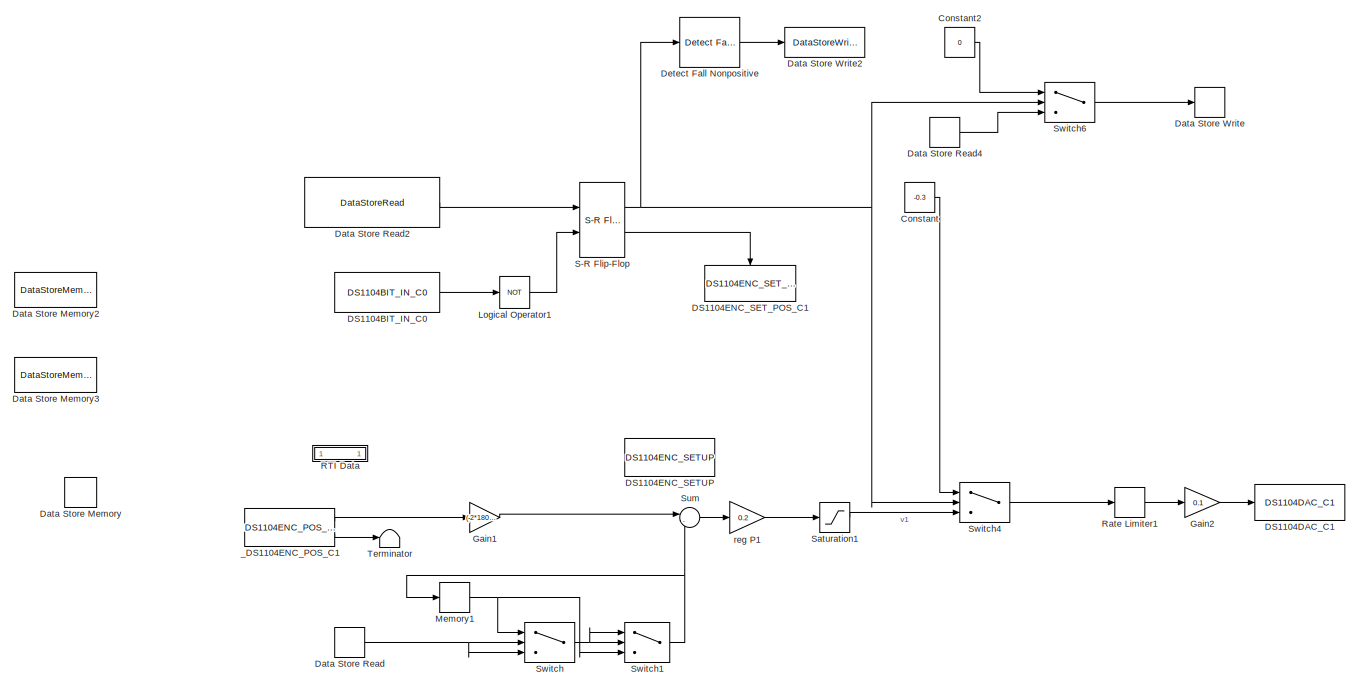
[diagram: root canvas - part 1/2, full width, top band]
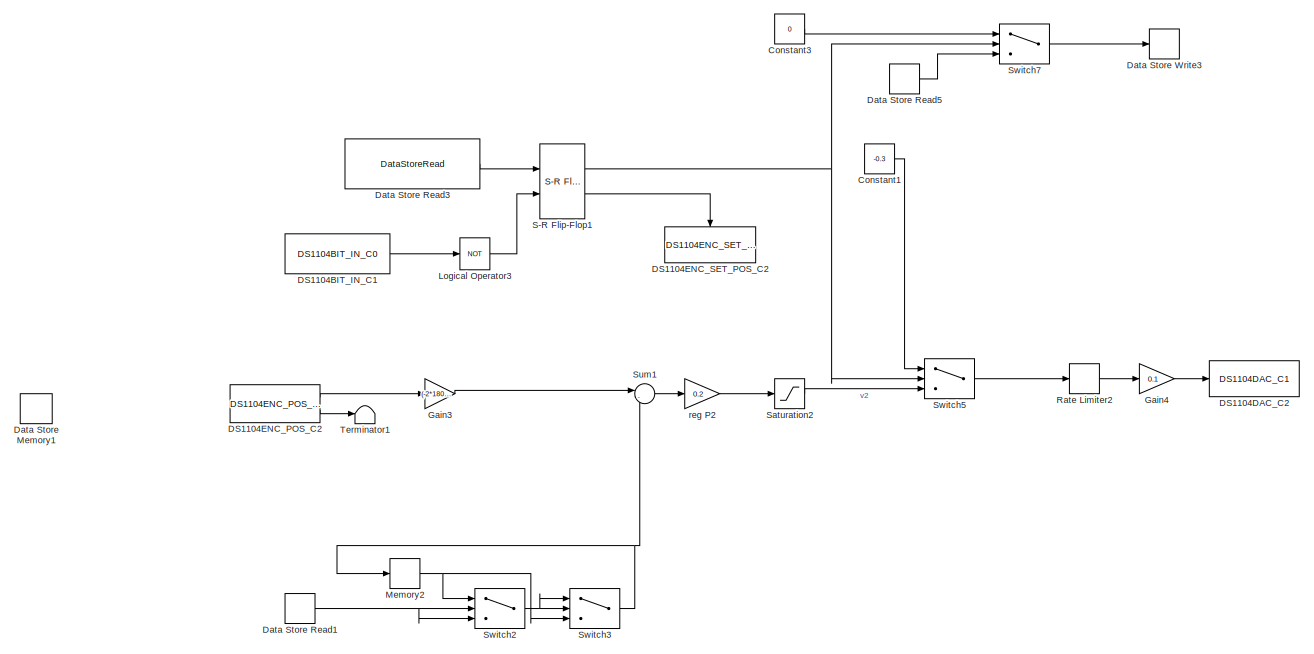
[diagram: root canvas - part 2/2, full width, bottom band]
MODEL slx_626cdde217bb
KIND model
CONFIG AbsTol = auto
CONFIG FixedStep = 0.001
CONFIG MaxStep = auto
CONFIG MinStep = auto
CONFIG PostLoadFcn = , if any(exist('dsrtsu_mdlpostloadfcn', 'file') == [2, 3, 6]), try dsrtsu_mdlpostloadfcn('Execute', bdroot); catch fprintf('Error in PostLoadFcn (dsrtsu_mdlpostloadfcn) for model "%s":\n %s\n', bdroot, lasterr); end, end, \n
CONFIG RelTol = 1e-3
CONFIG SampleTimeConstraint = Unconstrained
CONFIG Solver = ode1
CONFIG SolverMode = Auto
CONFIG SolverName = ode1
CONFIG StartTime = 0.0
CONFIG StopTime = Inf
BLOCK [Constant] Constant
  Value = -0.3
BLOCK [Constant] Constant1
  Value = -0.3
BLOCK [Constant] Constant2
  Value = 0
BLOCK [Constant] Constant3
  Value = 0
BLOCK [Reference] DS1104BIT_IN_C0  REF=rtilib1104/DS1104 MASTER PPC/DS1104BIT_IN_C0
  ChannelNo = 0
  DSProperties = struct('RTI',struct('Version',uint32(1),'BlockType',struct('isSLSource',uint8(1),'isSLSink',uint8(0),'isHWSource',uint8(1),'isHWSink',uint8(0),'isSetup',uint8(0),'isInline',uint8(1),'isNonInline',uint8(0),'isInterrupt',uint8(0),'isChannelwise',uint8(1)),'IOBoardType','DS1104MASTER','UnitType','BIT','Identifier','BITINCH','DialogType','ML','BlockSet','NONE','SlaveProcessor','NONE'))
  DialogFcn = gui1104bit_in
  Ports = [0, 1]
  Reserved1 = []
  Reserved2 = []
  Reserved3 = []
  Reserved4 = []
  SourceBlock = rtilib1104/DS1104 MASTER PPC/DS1104BIT_IN_C0
  SourceType = RTI
  UnitName = {'DS1104BIT_IN_C'}
  UnitValues = { 0 }
BLOCK [Reference] DS1104BIT_IN_C1  REF=rtilib1104/DS1104 MASTER PPC/DS1104BIT_IN_C0
  ChannelNo = 1
  DSProperties = struct('RTI',struct('Version',uint32(1),'BlockType',struct('isSLSource',uint8(1),'isSLSink',uint8(0),'isHWSource',uint8(1),'isHWSink',uint8(0),'isSetup',uint8(0),'isInline',uint8(1),'isNonInline',uint8(0),'isInterrupt',uint8(0),'isChannelwise',uint8(1)),'IOBoardType','DS1104MASTER','UnitType','BIT','Identifier','BITINCH','DialogType','ML','BlockSet','NONE','SlaveProcessor','NONE'))
  DialogFcn = gui1104bit_in
  Ports = [0, 1]
  Reserved1 = []
  Reserved2 = []
  Reserved3 = []
  Reserved4 = []
  SourceBlock = rtilib1104/DS1104 MASTER PPC/DS1104BIT_IN_C0
  SourceType = RTI
  UnitName = {'DS1104BIT_IN_C'}
  UnitValues = { 1 }
BLOCK [Reference] DS1104DAC_C1  REF=rtilib1104/DS1104 MASTER PPC/DS1104DAC_C1
  ChannelNo = 1
  DSProperties = struct('RTI',struct('Version',uint32(1),'BlockType',struct('isSLSource',uint8(0),'isSLSink',uint8(1),'isHWSource',uint8(0),'isHWSink',uint8(1),'isSetup',uint8(0),'isInline',uint8(1),'isNonInline',uint8(0),'isInterrupt',uint8(0),'isChannelwise',uint8(1)),'IOBoardType','DS1104MASTER','UnitType','DAC','Identifier','DAC','DialogType','ML','BlockSet','NONE','SlaveProcessor','NONE'))
  DialogFcn = gui1104dac
  InitValue = 0
  Ports = [1]
  Reserved1 = []
  Reserved2 = []
  Reserved3 = []
  Reserved4 = []
  SourceBlock = rtilib1104/DS1104 MASTER PPC/DS1104DAC_C1
  SourceType = RTI
  TermMode = 0
  TermValue = 0
  UnitName = { 'DS1104DAC_C'}
  UnitValues = { 1 }
BLOCK [Reference] DS1104DAC_C2  REF=rtilib1104/DS1104 MASTER PPC/DS1104DAC_C1
  ChannelNo = 2
  DSProperties = struct('RTI',struct('Version',uint32(1),'BlockType',struct('isSLSource',uint8(0),'isSLSink',uint8(1),'isHWSource',uint8(0),'isHWSink',uint8(1),'isSetup',uint8(0),'isInline',uint8(1),'isNonInline',uint8(0),'isInterrupt',uint8(0),'isChannelwise',uint8(1)),'IOBoardType','DS1104MASTER','UnitType','DAC','Identifier','DAC','DialogType','ML','BlockSet','NONE','SlaveProcessor','NONE'))
  DialogFcn = gui1104dac
  InitValue = 0
  Ports = [1]
  Reserved1 = []
  Reserved2 = []
  Reserved3 = []
  Reserved4 = []
  SourceBlock = rtilib1104/DS1104 MASTER PPC/DS1104DAC_C1
  SourceType = RTI
  TermMode = 0
  TermValue = 0
  UnitName = { 'DS1104DAC_C'}
  UnitValues = {2}
BLOCK [Reference] DS1104ENC_POS_C2  REF=rtilib1104/DS1104 MASTER PPC/DS1104ENC_POS_C1
  ChannelNo = 2
  DSProperties = struct('RTI',struct('Version',uint32(1),'BlockType',struct('isSLSource',uint8(1),'isSLSink',uint8(0),'isHWSource',uint8(1),'isHWSink',uint8(0),'isSetup',uint8(0),'isInline',uint8(1),'isNonInline',uint8(0),'isInterrupt',uint8(0),'isChannelwise',uint8(1)),'IOBoardType','DS1104MASTER','UnitType','ENC','Identifier','ENCPOSCH','DialogType','ML','BlockSet','NONE','SlaveProcessor','NONE'))
  DialogFcn = gui1104enc_pos
  Ports = [0, 2]
  PosValue = 0
  Reserved1 = []
  Reserved2 = []
  Reserved3 = []
  Reserved4 = []
  SourceBlock = rtilib1104/DS1104 MASTER PPC/DS1104ENC_POS_C1
  SourceType = RTI
  UnitName = {'DS1104ENC_POS_C'}
  UnitValues = { 2 }
BLOCK [Reference] DS1104ENC_SETUP  REF=rtilib1104/DS1104 MASTER PPC/DS1104ENC_SETUP
  DSProperties = struct('RTI',struct('Version',uint32(1),'BlockType',struct('isSLSource',uint8(0),'isSLSink',uint8(0),'isHWSource',uint8(0),'isHWSink',uint8(0),'isSetup',uint8(0),'isInline',uint8(1),'isNonInline',uint8(0),'isInterrupt',uint8(0),'isChannelwise',uint8(0)),'IOBoardType','DS1104MASTER','UnitType','ENC','Identifier','ENCSETUP','DialogType','ML','BlockSet','NONE','SlaveProcessor','NONE'))
  DialogFcn = gui1104enc_setup
  Ports = []
  Reserved1 = []
  Reserved2 = []
  Reserved3 = []
  Reserved4 = []
  SignalType = [0 0]
  SourceBlock = rtilib1104/DS1104 MASTER PPC/DS1104ENC_SETUP
  SourceType = RTI
  UnitName = {'DS1104ENC_SETUP'}
  UnitValues = { [] }
BLOCK [Reference] DS1104ENC_SET_POS_C1  REF=rtilib1104/DS1104 MASTER PPC/DS1104ENC_SET_POS_C1
  ChannelNo = 1
  DSProperties = struct('RTI',struct('Version',uint32(1),'BlockType',struct('isSLSource',uint8(0),'isSLSink',uint8(1),'isHWSource',uint8(0),'isHWSink',uint8(1),'isSetup',uint8(0),'isInline',uint8(1),'isNonInline',uint8(0),'isInterrupt',uint8(0),'isChannelwise',uint8(1)),'IOBoardType','DS1104MASTER','UnitType','ENC','Identifier','ENCRESET','DialogType','ML','BlockSet','NONE','SlaveProcessor','NONE'))
  DialogFcn = gui1104enc_set_pos
  Ports = [0, 0, 0, 1]
  PosValue = 0
  Reserved1 = []
  Reserved2 = []
  Reserved3 = []
  Reserved4 = []
  SourceBlock = rtilib1104/DS1104 MASTER PPC/DS1104ENC_SET_POS_C1
  SourceType = RTI
  UnitName = {'DS1104ENC_SET_POS_C'}
  UnitValues = { 1 }
BLOCK [Reference] DS1104ENC_SET_POS_C2  REF=rtilib1104/DS1104 MASTER PPC/DS1104ENC_SET_POS_C1
  ChannelNo = 2
  DSProperties = struct('RTI',struct('Version',uint32(1),'BlockType',struct('isSLSource',uint8(0),'isSLSink',uint8(1),'isHWSource',uint8(0),'isHWSink',uint8(1),'isSetup',uint8(0),'isInline',uint8(1),'isNonInline',uint8(0),'isInterrupt',uint8(0),'isChannelwise',uint8(1)),'IOBoardType','DS1104MASTER','UnitType','ENC','Identifier','ENCRESET','DialogType','ML','BlockSet','NONE','SlaveProcessor','NONE'))
  DialogFcn = gui1104enc_set_pos
  Ports = [0, 0, 0, 1]
  PosValue = 0
  Reserved1 = []
  Reserved2 = []
  Reserved3 = []
  Reserved4 = []
  SourceBlock = rtilib1104/DS1104 MASTER PPC/DS1104ENC_SET_POS_C1
  SourceType = RTI
  UnitName = {'DS1104ENC_SET_POS_C'}
  UnitValues = {2}
BLOCK [DataStoreMemory] Data Store Memory
  DataStoreName = WZ1
  ReadBeforeWriteMsg = warning
  WriteAfterReadMsg = warning
  WriteAfterWriteMsg = warning
BLOCK [DataStoreMemory] Data Store Memory1
  DataStoreName = WZ2
  ReadBeforeWriteMsg = warning
  WriteAfterReadMsg = warning
  WriteAfterWriteMsg = warning
BLOCK [DataStoreMemory] Data Store Memory2
  DataStoreName = bazowanie1
  InitialValue = false
  OutDataTypeStr = boolean
  ReadBeforeWriteMsg = warning
  WriteAfterReadMsg = warning
  WriteAfterWriteMsg = warning
BLOCK [DataStoreMemory] Data Store Memory3
  DataStoreName = bazowanie2
  InitialValue = false
  OutDataTypeStr = boolean
  ReadBeforeWriteMsg = warning
  WriteAfterReadMsg = warning
  WriteAfterWriteMsg = warning
BLOCK [DataStoreRead] Data Store Read
  DataStoreName = WZ1
  DialogController = Simulink.DDGSource
  Ports = [0, 1]
BLOCK [DataStoreRead] Data Store Read1
  DataStoreName = WZ2
  Ports = [0, 1]
BLOCK [DataStoreRead] Data Store Read2
  DataStoreName = bazowanie1
  Ports = [0, 1]
BLOCK [DataStoreRead] Data Store Read3
  DataStoreName = bazowanie2
  Ports = [0, 1]
BLOCK [DataStoreRead] Data Store Read4
  DataStoreName = WZ1
  DialogController = Simulink.DDGSource
  Ports = [0, 1]
BLOCK [DataStoreRead] Data Store Read5
  DataStoreName = WZ2
  DialogController = Simulink.DDGSource
  Ports = [0, 1]
BLOCK [DataStoreWrite] Data Store Write
  DataStoreName = WZ1
  Ports = [1]
BLOCK [DataStoreWrite] Data Store Write2
  DataStoreName = bazowanie2
  Ports = [1]
BLOCK [DataStoreWrite] Data Store Write3
  DataStoreName = WZ2
  Ports = [1]
BLOCK [Reference] Detect Fall Nonpositive  REF=simulink/Logic and Bit
Operations/Detect Fall
Nonpositive
  InputProcessing = Inherited
  OutDataTypeStr = boolean
  Ports = [1, 1]
  SourceBlock = simulink/Logic and Bit\nOperations/Detect Fall\nNonpositive
  SourceType = Detect Fall Nonpositive
  vinit = 0
BLOCK [Gain] Gain1
  Gain = (-2*180)/(500*128)
  OutDataTypeStr = Inherit: Inherit via internal rule
  ParamDataTypeStr = Inherit: Inherit via internal rule
  SaturateOnIntegerOverflow = off
BLOCK [Gain] Gain2
  Gain = 0.1
  OutDataTypeStr = Inherit: Inherit via internal rule
  ParamDataTypeStr = Inherit: Inherit via internal rule
  SaturateOnIntegerOverflow = off
BLOCK [Gain] Gain3
  Gain = (-2*180)/(500*128)
  OutDataTypeStr = Inherit: Inherit via internal rule
  ParamDataTypeStr = Inherit: Inherit via internal rule
  SaturateOnIntegerOverflow = off
BLOCK [Gain] Gain4
  Gain = 0.1
  OutDataTypeStr = Inherit: Inherit via internal rule
  ParamDataTypeStr = Inherit: Inherit via internal rule
  SaturateOnIntegerOverflow = off
BLOCK [Logic] Logical Operator1
  AllPortsSameDT = off
  Operator = NOT
  OutDataTypeStr = boolean
  Ports = [1, 1]
BLOCK [Logic] Logical Operator3
  AllPortsSameDT = off
  Operator = NOT
  OutDataTypeStr = boolean
  Ports = [1, 1]
BLOCK [Memory] Memory1
BLOCK [Memory] Memory2
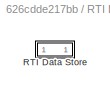
BLOCK [SubSystem] RTI Data
  CopyFcn = if exist('rtidc'), try,  rtidc('DataHostBlockClbCopy', gcbh); catch, disp(['Warning: ''CopyFcn'' for RTI Data block failed: ' lasterr]); end, end,
  DeleteFcn = if exist('rtidc'), try,  rtidc('DataHostBlockClbDelete', gcbh); catch, disp(['Warning: ''DeleteFcn'' for RTI Data block failed: ' lasterr]); end, end,
  LoadFcn = if exist('rtidc'), try,  rtidc('DataHostBlockClbLoad', gcbh); catch, disp(['Warning: ''LoadFcn'' for RTI Data block failed: ' lasterr]); end, end,
  ModelCloseFcn = if exist('rtidc'), try,  rtidc('DataHostBlockClbModelClose', gcbh); catch, disp(['Warning: ''ModelCloseFcn'' for RTI Data block failed: ' lasterr]); end, end,
  NameChangeFcn = if exist('rtidc'), try,  rtidc('DataHostBlockClbNameChange', gcbh); catch, disp(['Warning: ''NameChangeFcn'' for RTI Data block failed: ' lasterr]); end, end,
  Ports = []
  PostSaveFcn = if exist('rtidc'), try,  rtidc('DataHostBlockClbPostSave', gcbh); catch, disp(['Warning: ''PostSaveFcn'' for RTI Data block failed: ' lasterr]); end, end,
  PreSaveFcn = if exist('rtidc'), try,  rtidc('DataHostBlockClbPreSave', gcbh); catch, disp(['Warning: ''PreSaveFcn'' for RTI Data block failed: ' lasterr]); end, end,
  RequestExecContextInheritance = off
  Tag = struct('RTIDataServer',struct('RTIDataServerVs','2','RTIModelDescription','struct(''main'',''SCARA_215'',''sub'','''',''isMp'',0)'))
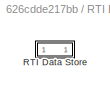
BLOCK [SubSystem] RTI Data/RTI Data Store
  Ports = []
  RequestExecContextInheritance = off
  Tag = struct('private',struct('version',struct('dsVer',uint32(2),'dsVerCreation',uint32(2),'RTI',struct('ver','7.4','type','RTI1104')),'access',struct('type','Model','isPerm',1,'created',['26-Mar-2018 08:24:55'],'modified',['26-Mar-2018 09:29:41'],'location','')),'public',struct('main',struct('data',[]),'sub',struct('name',{{'SCARA_215'}},'data',{{struct('TH',struct('thTaskInfo',struct('taskType',{'TIME...<+886ch>
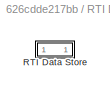
BLOCK [SubSystem] RTI Data/RTI Data Store/RTI Data Store
  Ports = []
  RequestExecContextInheritance = off
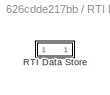
BLOCK [SubSystem] RTI Data/RTI Data Store/RTI Data Store/RTI Data Store
  Ports = []
  RequestExecContextInheritance = off
BLOCK [SubSystem] RTI Data/RTI Data Store/RTI Data Store/RTI Data Store/RTI Data Store
  Ports = []
  RequestExecContextInheritance = off
BLOCK [RateLimiter] Rate Limiter1
  FallingSlewLimit = -50
  RisingSlewLimit = 50
  SampleTimeMode = inherited
BLOCK [RateLimiter] Rate Limiter2
  FallingSlewLimit = -50
  RisingSlewLimit = 50
  SampleTimeMode = inherited
BLOCK [Reference] S-R Flip-Flop  REF=simulink_extras/Flip Flops/S-R
Flip-Flop
  Ports = [2, 2]
  SourceBlock = simulink_extras/Flip Flops/S-R\nFlip-Flop
  SourceType = SRFlipFlop
  initial_condition = 0
BLOCK [Reference] S-R Flip-Flop1  REF=simulink_extras/Flip Flops/S-R
Flip-Flop
  Ports = [2, 2]
  SourceBlock = simulink_extras/Flip Flops/S-R\nFlip-Flop
  SourceType = SRFlipFlop
  initial_condition = 0
BLOCK [Saturate] Saturation1
  InputPortMap = u0
  LowerLimit = -3
  Ports = [1, 1]
  UpperLimit = 3
BLOCK [Saturate] Saturation2
  InputPortMap = u0
  LowerLimit = -3
  Ports = [1, 1]
  UpperLimit = 3
BLOCK [Sum] Sum
  IconShape = round
  InputSameDT = off
  Inputs = |-+
  OutDataTypeStr = Inherit: Inherit via internal rule
  Ports = [2, 1]
  SaturateOnIntegerOverflow = off
BLOCK [Sum] Sum1
  IconShape = round
  InputSameDT = off
  Inputs = |-+
  OutDataTypeStr = Inherit: Inherit via internal rule
  Ports = [2, 1]
  SaturateOnIntegerOverflow = off
BLOCK [Switch] Switch
  Criteria = u2 > Threshold
  InputSameDT = off
  SaturateOnIntegerOverflow = off
  Threshold = 180
BLOCK [Switch] Switch1
  InputSameDT = off
  SaturateOnIntegerOverflow = off
  Threshold = -180
BLOCK [Switch] Switch2
  Criteria = u2 > Threshold
  InputSameDT = off
  SaturateOnIntegerOverflow = off
  Threshold = 180
BLOCK [Switch] Switch3
  InputSameDT = off
  SaturateOnIntegerOverflow = off
  Threshold = -180
BLOCK [Switch] Switch4
  Criteria = u2 > Threshold
  InputSameDT = off
  SaturateOnIntegerOverflow = off
BLOCK [Switch] Switch5
  Criteria = u2 > Threshold
  InputSameDT = off
  SaturateOnIntegerOverflow = off
BLOCK [Switch] Switch6
  Criteria = u2 > Threshold
  InputSameDT = off
  SaturateOnIntegerOverflow = off
BLOCK [Switch] Switch7
  Criteria = u2 > Threshold
  InputSameDT = off
  SaturateOnIntegerOverflow = off
BLOCK [Terminator] Terminator
BLOCK [Terminator] Terminator1
BLOCK [Reference] _DS1104ENC_POS_C1  REF=rtilib1104/DS1104 MASTER PPC/DS1104ENC_POS_C1
  ChannelNo = 1
  DSProperties = struct('RTI',struct('Version',uint32(1),'BlockType',struct('isSLSource',uint8(1),'isSLSink',uint8(0),'isHWSource',uint8(1),'isHWSink',uint8(0),'isSetup',uint8(0),'isInline',uint8(1),'isNonInline',uint8(0),'isInterrupt',uint8(0),'isChannelwise',uint8(1)),'IOBoardType','DS1104MASTER','UnitType','ENC','Identifier','ENCPOSCH','DialogType','ML','BlockSet','NONE','SlaveProcessor','NONE'))
  DialogFcn = gui1104enc_pos
  Ports = [0, 2]
  PosValue = 0
  Reserved1 = []
  Reserved2 = []
  Reserved3 = []
  Reserved4 = []
  SourceBlock = rtilib1104/DS1104 MASTER PPC/DS1104ENC_POS_C1
  SourceType = RTI
  UnitName = {'DS1104ENC_POS_C'}
  UnitValues = { 1 }
BLOCK [Gain] reg P1
  Gain = 0.2
  OutDataTypeStr = Inherit: Inherit via internal rule
  ParamDataTypeStr = Inherit: Inherit via internal rule
  SaturateOnIntegerOverflow = off
BLOCK [Gain] reg P2
  Gain = 0.2
  OutDataTypeStr = Inherit: Inherit via internal rule
  ParamDataTypeStr = Inherit: Inherit via internal rule
  SaturateOnIntegerOverflow = off
LINE Constant1:1 -> Switch5:1
LINE Constant2:1 -> Switch6:1
LINE Constant3:1 -> Switch7:1
LINE Constant:1 -> Switch4:1
LINE DS1104BIT_IN_C0:1 -> Logical Operator1:1
LINE DS1104BIT_IN_C1:1 -> Logical Operator3:1
LINE DS1104ENC_POS_C2:1 -> Gain3:1
LINE DS1104ENC_POS_C2:2 -> Terminator1:1
NET Data Store Read1:1 -> Switch2:2, Switch2:3
LINE Data Store Read2:1 -> S-R Flip-Flop:1
LINE Data Store Read3:1 -> S-R Flip-Flop1:1
LINE Data Store Read4:1 -> Switch6:3
LINE Data Store Read5:1 -> Switch7:3
NET Data Store Read:1 -> Switch:2, Switch:3
LINE Detect Fall Nonpositive:1 -> Data Store Write2:1
LINE Gain1:1 -> Sum:1
LINE Gain2:1 -> DS1104DAC_C1:1
LINE Gain3:1 -> Sum1:1
LINE Gain4:1 -> DS1104DAC_C2:1
LINE Logical Operator1:1 -> S-R Flip-Flop:2
LINE Logical Operator3:1 -> S-R Flip-Flop1:2
NET Memory1:1 -> Switch1:3, Switch:1
NET Memory2:1 -> Switch2:1, Switch3:3
LINE Rate Limiter1:1 -> Gain2:1
LINE Rate Limiter2:1 -> Gain4:1
NET S-R Flip-Flop1:1 -> Switch5:2, Switch7:2
LINE S-R Flip-Flop1:2 -> DS1104ENC_SET_POS_C2:trigger
NET S-R Flip-Flop:1 -> Detect Fall Nonpositive:1, Switch4:2, Switch6:2
LINE S-R Flip-Flop:2 -> DS1104ENC_SET_POS_C1:trigger
LINE Saturation1:1 -> Switch4:3
LINE Saturation2:1 -> Switch5:3
LINE Sum1:1 -> reg P2:1
LINE Sum:1 -> reg P1:1
NET Switch1:1 -> Memory1:1, Sum:2
NET Switch2:1 -> Switch3:1, Switch3:2
NET Switch3:1 -> Memory2:1, Sum1:2
LINE Switch4:1 -> Rate Limiter1:1
LINE Switch5:1 -> Rate Limiter2:1
LINE Switch6:1 -> Data Store Write:1
LINE Switch7:1 -> Data Store Write3:1
NET Switch:1 -> Switch1:1, Switch1:2
LINE _DS1104ENC_POS_C1:1 -> Gain1:1
LINE _DS1104ENC_POS_C1:2 -> Terminator:1
LINE reg P1:1 -> Saturation1:1
LINE reg P2:1 -> Saturation2:1
note: NET lines group one-source signal fan-out (src -> all destinations, sorted); 1:1 wires keep LINE
